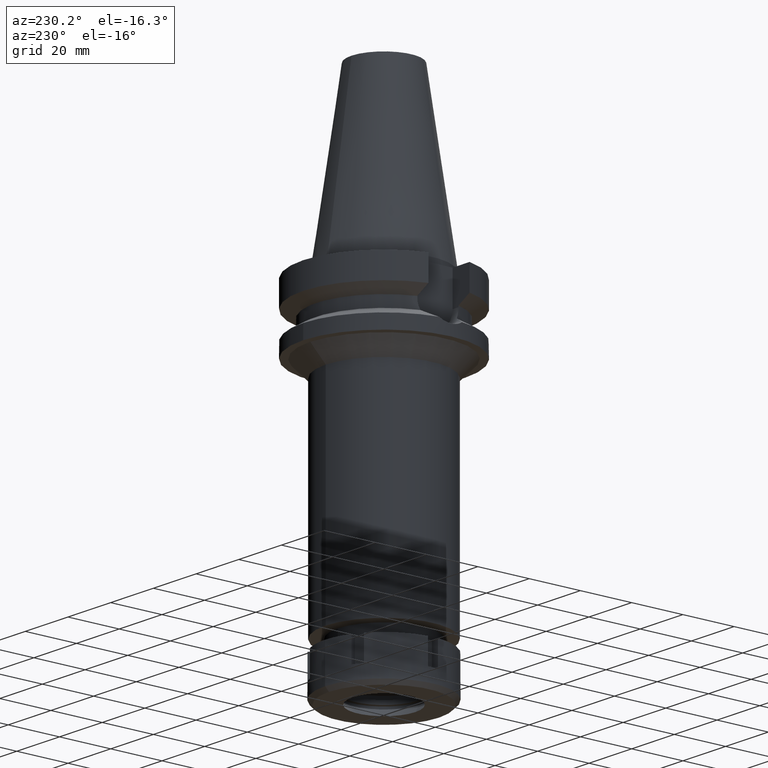
[diagram: clean part render]
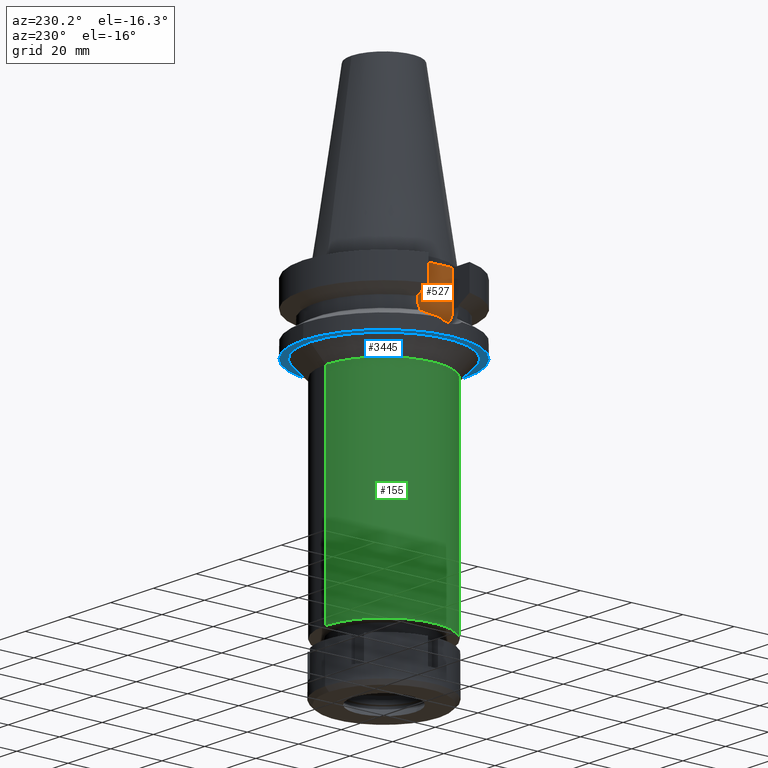
[diagram: same view with three faces highlighted in distinct colors, each labeled with its STEP entity id]
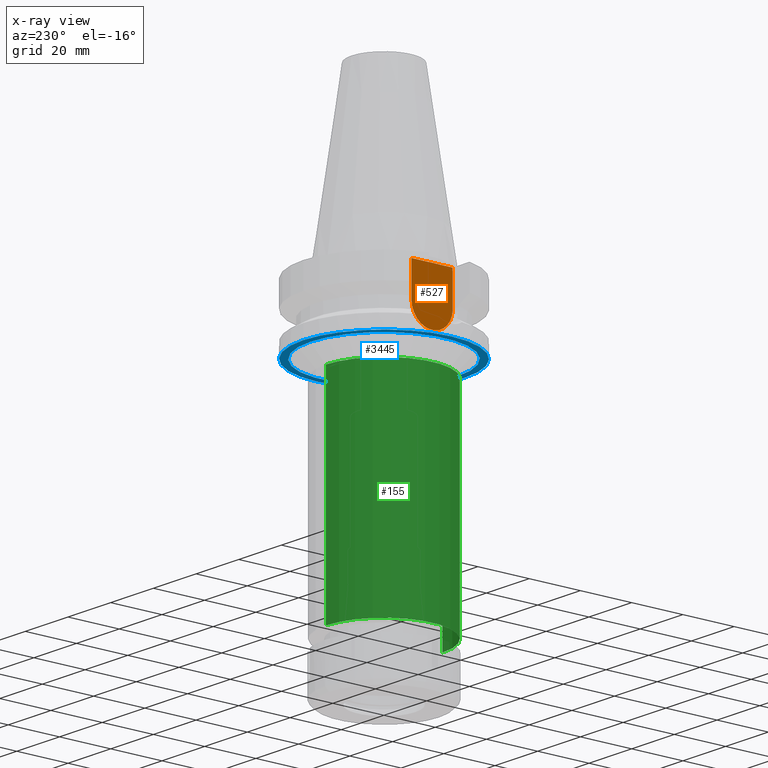
[diagram: x-ray of the same camera — body ghosted, the three highlighted faces saturated]
A machine part, auxiliary view with three faces highlighted in distinct colors.
The next image is the same camera in x-ray (body ghosted, the three faces saturated) — at least one of them is partly hidden behind the body in this view.
Their STEP definitions:

[orange] entity #527 — the highlighted planar face has unit normal (-1, 0, 0).
#1 = ORIENTED_EDGE ( 'NONE', *, *, #923, .F. ) ;
#19 = PLANE ( 'NONE',  #3465 ) ;
#34 = EDGE_LOOP ( 'NONE', ( #1580, #1, #1038, #704 ) ) ;
#264 = CARTESIAN_POINT ( 'NONE',  ( -22.50000000000000000, 8.050000000000000711, -2.000000000000000000 ) ) ;
#277 = LINE ( 'NONE', #581, #1193 ) ;
#339 = DIRECTION ( 'NONE',  ( 0.0000000000000000000, 0.0000000000000000000, 1.000000000000000000 ) ) ;
#393 = DIRECTION ( 'NONE',  ( 0.0000000000000000000, 1.000000000000000000, 0.0000000000000000000 ) ) ;
#527 = ADVANCED_FACE ( 'NONE', ( #1509 ), #19, .T. ) ;
#581 = CARTESIAN_POINT ( 'NONE',  ( -22.50000000000000000, 8.050000000000000711, -14.94999999999999929 ) ) ;
#704 = ORIENTED_EDGE ( 'NONE', *, *, #3537, .T. ) ;
#804 = VERTEX_POINT ( 'NONE', #264 ) ;
#888 = CIRCLE ( 'NONE', #1825, 8.050000000000000711 ) ;
#923 = EDGE_CURVE ( 'NONE', #1588, #1584, #888, .T. ) ;
#957 = CARTESIAN_POINT ( 'NONE',  ( -22.50000000000000000, -8.050000000000000711, -2.000000000000000000 ) ) ;
#1010 = CARTESIAN_POINT ( 'NONE',  ( -22.50000000000000000, -8.050000000000000711, -14.94999999999999929 ) ) ;
#1038 = ORIENTED_EDGE ( 'NONE', *, *, #2312, .F. ) ;
#1081 = DIRECTION ( 'NONE',  ( 0.0000000000000000000, 0.0000000000000000000, -1.000000000000000000 ) ) ;
#1193 = VECTOR ( 'NONE', #2797, 1000.000000000000000 ) ;
#1509 = FACE_OUTER_BOUND ( 'NONE', #34, .T. ) ;
#1552 = CARTESIAN_POINT ( 'NONE',  ( -22.50000000000000000, 8.050000000000000711, -14.94999999999999929 ) ) ;
#1580 = ORIENTED_EDGE ( 'NONE', *, *, #2776, .F. ) ;
#1584 = VERTEX_POINT ( 'NONE', #1552 ) ;
#1588 = VERTEX_POINT ( 'NONE', #1010 ) ;
#1725 = VECTOR ( 'NONE', #393, 1000.000000000000000 ) ;
#1734 = CARTESIAN_POINT ( 'NONE',  ( -22.50000000000000000, -8.050000000000000711, -2.000000000000000000 ) ) ;
#1825 = AXIS2_PLACEMENT_3D ( 'NONE', #2183, #3084, #2747 ) ;
#1952 = CARTESIAN_POINT ( 'NONE',  ( -22.50000000000000000, -8.050000000000000711, -2.000000000000000000 ) ) ;
#1962 = CARTESIAN_POINT ( 'NONE',  ( -22.50000000000000000, 2.173748068486999793E-14, 0.0000000000000000000 ) ) ;
#1966 = VERTEX_POINT ( 'NONE', #1734 ) ;
#2183 = CARTESIAN_POINT ( 'NONE',  ( -22.50000000000000000, 1.807578675540999863E-14, -14.94999999999999929 ) ) ;
#2305 = DIRECTION ( 'NONE',  ( -1.000000000000000000, 0.0000000000000000000, 0.0000000000000000000 ) ) ;
#2312 = EDGE_CURVE ( 'NONE', #1966, #1588, #2453, .T. ) ;
#2453 = LINE ( 'NONE', #1952, #3347 ) ;
#2747 = DIRECTION ( 'NONE',  ( 0.0000000000000000000, -1.000000000000000000, 1.917893035551997704E-14 ) ) ;
#2776 = EDGE_CURVE ( 'NONE', #1584, #804, #277, .T. ) ;
#2797 = DIRECTION ( 'NONE',  ( 0.0000000000000000000, 0.0000000000000000000, 1.000000000000000000 ) ) ;
#2849 = LINE ( 'NONE', #957, #1725 ) ;
#3084 = DIRECTION ( 'NONE',  ( 1.000000000000000000, 0.0000000000000000000, 0.0000000000000000000 ) ) ;
#3347 = VECTOR ( 'NONE', #1081, 1000.000000000000000 ) ;
#3465 = AXIS2_PLACEMENT_3D ( 'NONE', #1962, #2305, #339 ) ;
#3537 = EDGE_CURVE ( 'NONE', #1966, #804, #2849, .T. ) ;

[blue] entity #3445 — the highlighted planar face has unit normal (0, 0, -1).
#141 = CARTESIAN_POINT ( 'NONE',  ( 0.0000000000000000000, 2.143376827867999896E-14, -27.00000000000000000 ) ) ;
#154 = DIRECTION ( 'NONE',  ( 0.0000000000000000000, 0.0000000000000000000, 1.000000000000000000 ) ) ;
#194 = EDGE_CURVE ( 'NONE', #3612, #1571, #2625, .T. ) ;
#273 = VERTEX_POINT ( 'NONE', #1631 ) ;
#346 = DIRECTION ( 'NONE',  ( 0.0000000000000000000, 1.000000000000000000, 0.0000000000000000000 ) ) ;
#355 = CARTESIAN_POINT ( 'NONE',  ( 0.0000000000000000000, 0.0000000000000000000, -27.00000000000000000 ) ) ;
#372 = AXIS2_PLACEMENT_3D ( 'NONE', #141, #154, #2104 ) ;
#389 = ORIENTED_EDGE ( 'NONE', *, *, #194, .F. ) ;
#444 = CARTESIAN_POINT ( 'NONE',  ( 0.0000000000000000000, 31.50000000000000000, -27.00000000000000000 ) ) ;
#552 = ORIENTED_EDGE ( 'NONE', *, *, #2242, .F. ) ;
#586 = DIRECTION ( 'NONE',  ( 0.0000000000000000000, -1.000000000000000000, 0.0000000000000000000 ) ) ;
#606 = CARTESIAN_POINT ( 'NONE',  ( 0.0000000000000000000, 0.0000000000000000000, -27.00000000000000000 ) ) ;
#951 = EDGE_CURVE ( 'NONE', #273, #2474, #3524, .T. ) ;
#1138 = EDGE_CURVE ( 'NONE', #1571, #3612, #3233, .T. ) ;
#1210 = PLANE ( 'NONE',  #2815 ) ;
#1254 = CARTESIAN_POINT ( 'NONE',  ( 0.0000000000000000000, 2.143376827867999896E-14, -27.00000000000000000 ) ) ;
#1571 = VERTEX_POINT ( 'NONE', #3182 ) ;
#1577 = ORIENTED_EDGE ( 'NONE', *, *, #951, .F. ) ;
#1631 = CARTESIAN_POINT ( 'NONE',  ( 0.0000000000000000000, 28.75000000000000000, -27.00000000000000000 ) ) ;
#1936 = AXIS2_PLACEMENT_3D ( 'NONE', #606, #2838, #2270 ) ;
#2104 = DIRECTION ( 'NONE',  ( 0.0000000000000000000, -1.000000000000000000, 0.0000000000000000000 ) ) ;
#2187 = EDGE_LOOP ( 'NONE', ( #1577, #552 ) ) ;
#2242 = EDGE_CURVE ( 'NONE', #2474, #273, #3225, .T. ) ;
#2270 = DIRECTION ( 'NONE',  ( 0.0000000000000000000, 1.000000000000000000, 0.0000000000000000000 ) ) ;
#2320 = FACE_BOUND ( 'NONE', #2187, .T. ) ;
#2384 = AXIS2_PLACEMENT_3D ( 'NONE', #1254, #2920, #346 ) ;
#2474 = VERTEX_POINT ( 'NONE', #2991 ) ;
#2503 = EDGE_LOOP ( 'NONE', ( #389, #2822 ) ) ;
#2597 = DIRECTION ( 'NONE',  ( 0.0000000000000000000, -1.000000000000000000, 0.0000000000000000000 ) ) ;
#2625 = CIRCLE ( 'NONE', #2384, 31.50000000000000000 ) ;
#2749 = CARTESIAN_POINT ( 'NONE',  ( 0.0000000000000000000, 0.0000000000000000000, -27.00000000000000000 ) ) ;
#2815 = AXIS2_PLACEMENT_3D ( 'NONE', #355, #2872, #2597 ) ;
#2822 = ORIENTED_EDGE ( 'NONE', *, *, #1138, .F. ) ;
#2838 = DIRECTION ( 'NONE',  ( 0.0000000000000000000, 0.0000000000000000000, -1.000000000000000000 ) ) ;
#2866 = AXIS2_PLACEMENT_3D ( 'NONE', #2749, #3317, #586 ) ;
#2872 = DIRECTION ( 'NONE',  ( 0.0000000000000000000, 0.0000000000000000000, -1.000000000000000000 ) ) ;
#2920 = DIRECTION ( 'NONE',  ( 0.0000000000000000000, 0.0000000000000000000, 1.000000000000000000 ) ) ;
#2991 = CARTESIAN_POINT ( 'NONE',  ( 0.0000000000000000000, -28.75000000000000000, -27.00000000000000000 ) ) ;
#3182 = CARTESIAN_POINT ( 'NONE',  ( 0.0000000000000000000, -31.50000000000000000, -27.00000000000000000 ) ) ;
#3225 = CIRCLE ( 'NONE', #2866, 28.75000000000000000 ) ;
#3233 = CIRCLE ( 'NONE', #372, 31.50000000000000000 ) ;
#3317 = DIRECTION ( 'NONE',  ( 0.0000000000000000000, 0.0000000000000000000, -1.000000000000000000 ) ) ;
#3445 = ADVANCED_FACE ( 'NONE', ( #3488, #2320 ), #1210, .T. ) ;
#3488 = FACE_OUTER_BOUND ( 'NONE', #2503, .T. ) ;
#3524 = CIRCLE ( 'NONE', #1936, 28.75000000000000000 ) ;
#3612 = VERTEX_POINT ( 'NONE', #444 ) ;

[green] entity #155 — the highlighted cylindrical surface (partial cylindrical patch) has radius 22.75 mm, axis along (0, 0, -1).
#89 = DIRECTION ( 'NONE',  ( 0.0000000000000000000, 0.0000000000000000000, -1.000000000000000000 ) ) ;
#90 = FACE_OUTER_BOUND ( 'NONE', #384, .T. ) ;
#146 = CARTESIAN_POINT ( 'NONE',  ( 0.0000000000000000000, 22.75000000000000000, -33.00000000000000000 ) ) ;
#155 = ADVANCED_FACE ( 'NONE', ( #90 ), #3481, .T. ) ;
#297 = CARTESIAN_POINT ( 'NONE',  ( 0.0000000000000000000, -22.75000000000000000, -114.5000000000000000 ) ) ;
#363 = DIRECTION ( 'NONE',  ( 0.0000000000000000000, -1.000000000000000000, 0.0000000000000000000 ) ) ;
#384 = EDGE_LOOP ( 'NONE', ( #3535, #2216, #1478, #1820 ) ) ;
#402 = DIRECTION ( 'NONE',  ( 0.0000000000000000000, 0.0000000000000000000, -1.000000000000000000 ) ) ;
#459 = VERTEX_POINT ( 'NONE', #297 ) ;
#748 = EDGE_CURVE ( 'NONE', #2479, #1593, #2660, .T. ) ;
#759 = CARTESIAN_POINT ( 'NONE',  ( 0.0000000000000000000, -22.75000000000000000, -33.00000000000000000 ) ) ;
#832 = CIRCLE ( 'NONE', #948, 22.75000000000000000 ) ;
#944 = AXIS2_PLACEMENT_3D ( 'NONE', #3167, #3187, #2856 ) ;
#948 = AXIS2_PLACEMENT_3D ( 'NONE', #3188, #89, #363 ) ;
#1059 = EDGE_CURVE ( 'NONE', #1593, #459, #3636, .T. ) ;
#1218 = CARTESIAN_POINT ( 'NONE',  ( 0.0000000000000000000, 2.143376827867999896E-14, 75.02000000000001023 ) ) ;
#1235 = DIRECTION ( 'NONE',  ( 0.0000000000000000000, -1.000000000000000000, 0.0000000000000000000 ) ) ;
#1288 = DIRECTION ( 'NONE',  ( 0.0000000000000000000, 0.0000000000000000000, -1.000000000000000000 ) ) ;
#1478 = ORIENTED_EDGE ( 'NONE', *, *, #2374, .T. ) ;
#1570 = LINE ( 'NONE', #759, #2696 ) ;
#1593 = VERTEX_POINT ( 'NONE', #3247 ) ;
#1820 = ORIENTED_EDGE ( 'NONE', *, *, #748, .T. ) ;
#1869 = DIRECTION ( 'NONE',  ( 0.0000000000000000000, 0.0000000000000000000, -1.000000000000000000 ) ) ;
#1872 = CARTESIAN_POINT ( 'NONE',  ( 0.0000000000000000000, 22.75000000000000000, -33.00000000000000000 ) ) ;
#2216 = ORIENTED_EDGE ( 'NONE', *, *, #3210, .F. ) ;
#2374 = EDGE_CURVE ( 'NONE', #3263, #2479, #832, .T. ) ;
#2479 = VERTEX_POINT ( 'NONE', #1872 ) ;
#2660 = LINE ( 'NONE', #146, #3110 ) ;
#2696 = VECTOR ( 'NONE', #1869, 1000.000000000000000 ) ;
#2814 = CARTESIAN_POINT ( 'NONE',  ( 0.0000000000000000000, -22.75000000000000000, -33.00000000000000000 ) ) ;
#2856 = DIRECTION ( 'NONE',  ( 0.0000000000000000000, 1.000000000000000000, 0.0000000000000000000 ) ) ;
#2983 = AXIS2_PLACEMENT_3D ( 'NONE', #1218, #402, #1235 ) ;
#3110 = VECTOR ( 'NONE', #1288, 1000.000000000000000 ) ;
#3167 = CARTESIAN_POINT ( 'NONE',  ( 0.0000000000000000000, 2.143376827867999896E-14, -114.5000000000000000 ) ) ;
#3187 = DIRECTION ( 'NONE',  ( 0.0000000000000000000, 0.0000000000000000000, 1.000000000000000000 ) ) ;
#3188 = CARTESIAN_POINT ( 'NONE',  ( 0.0000000000000000000, 0.0000000000000000000, -33.00000000000000000 ) ) ;
#3210 = EDGE_CURVE ( 'NONE', #3263, #459, #1570, .T. ) ;
#3247 = CARTESIAN_POINT ( 'NONE',  ( 0.0000000000000000000, 22.75000000000000000, -114.5000000000000000 ) ) ;
#3263 = VERTEX_POINT ( 'NONE', #2814 ) ;
#3481 = CYLINDRICAL_SURFACE ( 'NONE', #2983, 22.75000000000000000 ) ;
#3535 = ORIENTED_EDGE ( 'NONE', *, *, #1059, .T. ) ;
#3636 = CIRCLE ( 'NONE', #944, 22.75000000000000000 ) ;